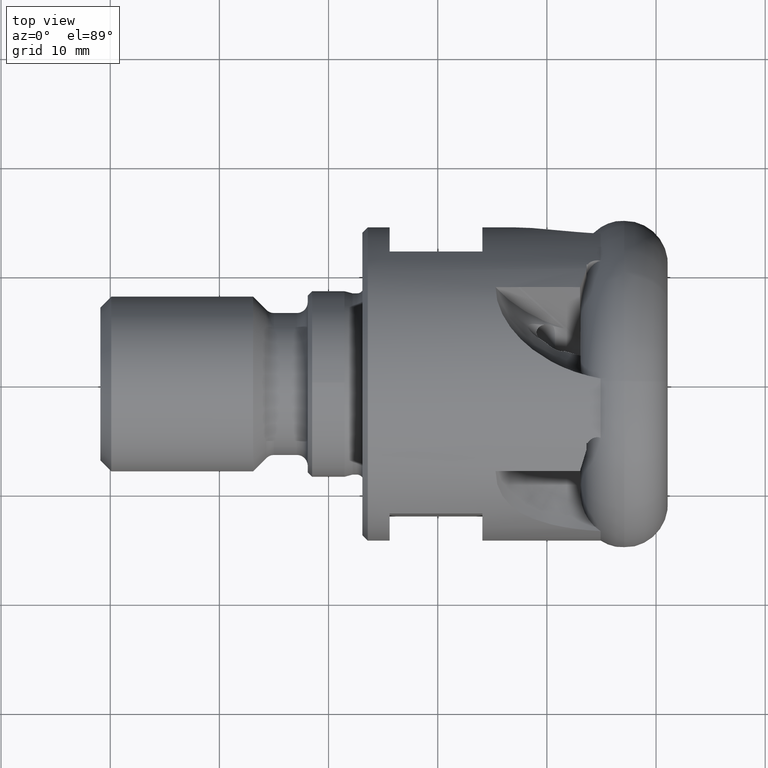
[diagram: clean part render]
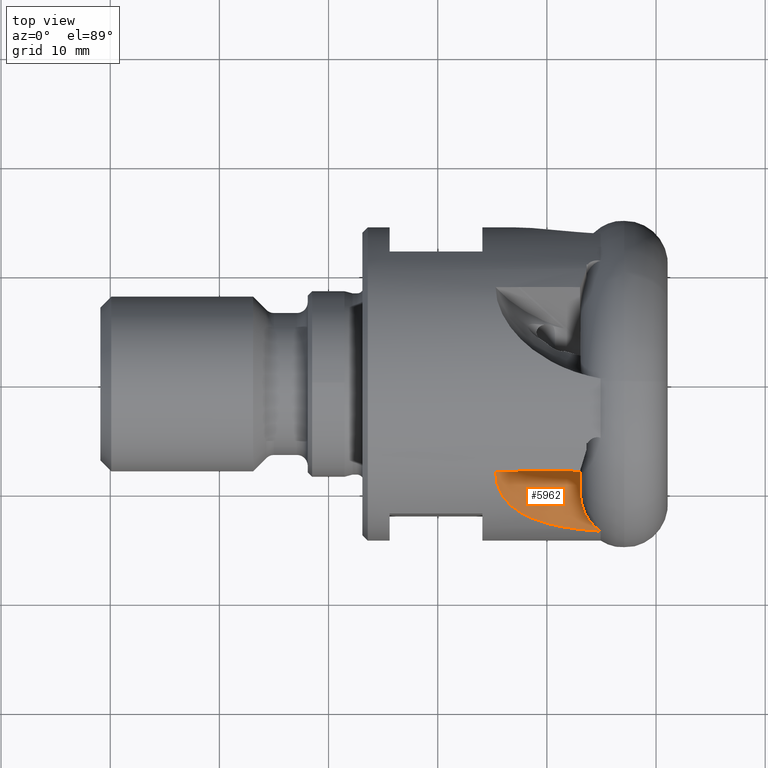
[diagram: same view with one face highlighted and labeled with its STEP entity id]
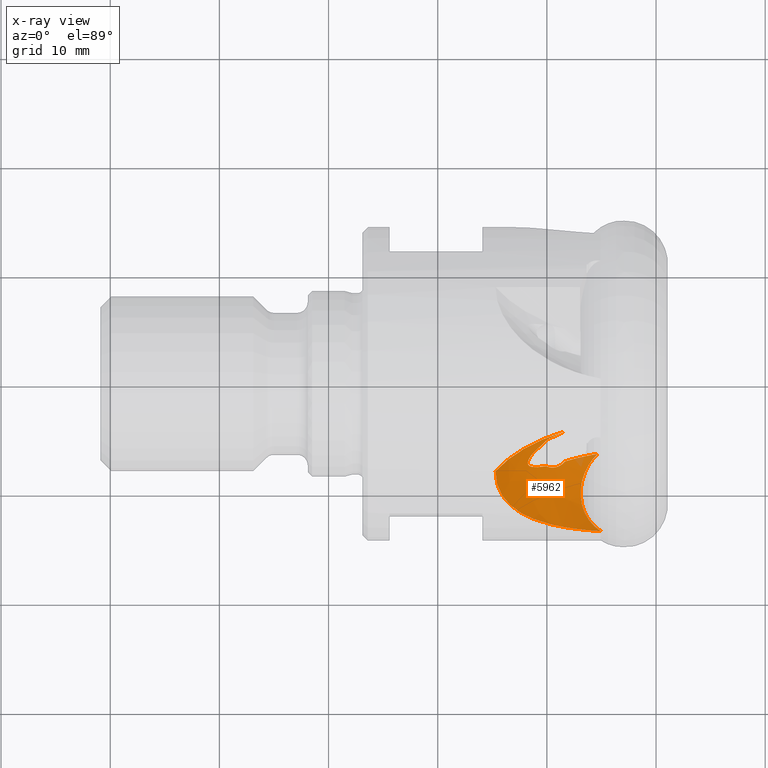
[diagram: x-ray of the same camera — body ghosted, the highlighted face saturated]
A machine part, top view. The second image highlights one B-rep face of the part: STEP entity #5962.
The next image is the same camera in x-ray: the body ghosted, the highlighted face saturated — about 1% of this face is hidden behind the body in this view.
In plain terms, the highlighted face is a freeform B-spline surface patch.
Its self-contained STEP definition (entity closure, byte-faithful):
#12 = CARTESIAN_POINT ( 'NONE',  ( -10.04705301473808500, -7.645800610265858700, 6.247864886973579800 ) ) ;
#26 = CARTESIAN_POINT ( 'NONE',  ( -3.705439773503559100, -13.38849098158731400, 4.369866364340852600 ) ) ;
#42 = CARTESIAN_POINT ( 'NONE',  ( -11.74272891371804700, -7.405442161452576500, 7.775184379327194900 ) ) ;
#67 = CARTESIAN_POINT ( 'NONE',  ( -10.70330900907564200, -7.736125916520622400, 6.717121923245575700 ) ) ;
#117 = CARTESIAN_POINT ( 'NONE',  ( -14.69983681011818200, -8.190169841626934400, 11.78319218061492000 ) ) ;
#125 = CARTESIAN_POINT ( 'NONE',  ( -11.70564417135195100, -7.529892942403793500, 7.687998823451656500 ) ) ;
#170 = CARTESIAN_POINT ( 'NONE',  ( -14.70646447844221400, -8.687454552218447600, 11.43754338044604800 ) ) ;
#224 = CARTESIAN_POINT ( 'NONE',  ( -14.40811349964155100, -9.797837785172966100, 10.48851702576042700 ) ) ;
#353 = CARTESIAN_POINT ( 'NONE',  ( -6.777666542526672400, -8.952613240475436400, 4.324612844097894800 ) ) ;
#427 = CARTESIAN_POINT ( 'NONE',  ( -8.871391609248368200, -7.631450204184483600, 5.496654848925729200 ) ) ;
#469 = EDGE_CURVE ( 'NONE', #4879, #7074, #6116, .T. ) ;
#508 = VERTEX_POINT ( 'NONE', #1663 ) ;
#635 = CARTESIAN_POINT ( 'NONE',  ( -10.24126164692486700, -16.20420476099483800, 8.245363903538978100 ) ) ;
#685 = CARTESIAN_POINT ( 'NONE',  ( -14.74160504866387600, -8.237418642983652000, 11.84822457656624400 ) ) ;
#697 = EDGE_CURVE ( 'NONE', #2544, #6575, #6360, .T. ) ;
#703 = CARTESIAN_POINT ( 'NONE',  ( -11.61799081035089300, -6.969453042920705800, 7.842360009631447900 ) ) ;
#753 = CARTESIAN_POINT ( 'NONE',  ( -9.563789143980603300, -12.99228823790977400, 6.100550756424100400 ) ) ;
#762 = CARTESIAN_POINT ( 'NONE',  ( -11.32708563753295300, -7.737966067767482400, 7.250201359892233000 ) ) ;
#782 = CARTESIAN_POINT ( 'NONE',  ( -5.655425139769594300, -13.53205544651263600, 4.776820319269227800 ) ) ;
#821 = EDGE_CURVE ( 'NONE', #1519, #6575, #7856, .T. ) ;
#823 = CARTESIAN_POINT ( 'NONE',  ( -6.857276701422535800, -10.80619919189971000, 4.397927385599067500 ) ) ;
#833 = EDGE_CURVE ( 'NONE', #7074, #508, #1454, .T. ) ;
#912 = CARTESIAN_POINT ( 'NONE',  ( -6.259754691299212600, -12.37785569290286100, 4.530162707943186500 ) ) ;
#1246 = CARTESIAN_POINT ( 'NONE',  ( -8.807074941663511700, -14.74853799945180600, 6.241810490720300000 ) ) ;
#1264 = EDGE_LOOP ( 'NONE', ( #3107, #4066, #6199, #4262, #4499, #6285, #5709, #2574 ) ) ;
#1297 = CARTESIAN_POINT ( 'NONE',  ( -12.80577058329979100, -6.031192742988312500, 8.811615135337381900 ) ) ;
#1316 = CARTESIAN_POINT ( 'NONE',  ( -10.25096557331351700, -5.515908716616217500, 7.378431682773954700 ) ) ;
#1396 = CARTESIAN_POINT ( 'NONE',  ( -10.86450497190189100, -7.747733009514333500, 6.845254331236978900 ) ) ;
#1414 = CARTESIAN_POINT ( 'NONE',  ( -11.06656975545760700, -12.55039754229236800, 6.959865723888330400 ) ) ;
#1438 = CARTESIAN_POINT ( 'NONE',  ( -11.99865759766023600, -12.16891827619830800, 7.614901060894053900 ) ) ;
#1454 = CIRCLE ( 'NONE', #6256, 14.43012998953867800 ) ;
#1470 = CARTESIAN_POINT ( 'NONE',  ( -13.96596693476521300, -10.58373955803185900, 9.694132764754781900 ) ) ;
#1519 = VERTEX_POINT ( 'NONE', #7130 ) ;
#1543 = CARTESIAN_POINT ( 'NONE',  ( -6.347523605528028400, -12.23412382193859900, 4.515213385737951900 ) ) ;
#1574 = CARTESIAN_POINT ( 'NONE',  ( -5.600306236559022800, -6.721614311995977300, 4.350837014569693300 ) ) ;
#1639 = CARTESIAN_POINT ( 'NONE',  ( -6.881626997928608900, -9.451815195784668300, 4.334825343394817800 ) ) ;
#1663 = CARTESIAN_POINT ( 'NONE',  ( -8.338957689632810100, -7.191332520442813300, 5.326495352307529400 ) ) ;
#1691 = CARTESIAN_POINT ( 'NONE',  ( -6.630694444002932300, -8.462551325484168900, 4.319699687729929000 ) ) ;
#1892 = CARTESIAN_POINT ( 'NONE',  ( -5.452550337404973700, -6.621363783211338100, 3.713674648972836500 ) ) ;
#1940 = CARTESIAN_POINT ( 'NONE',  ( -10.25096557331351700, -5.515908716616217500, 7.378431682773954700 ) ) ;
#1952 = CARTESIAN_POINT ( 'NONE',  ( -5.452550337404980900, -3.810877062970462700, 5.755612775622114300 ) ) ;
#1955 = EDGE_CURVE ( 'NONE', #2222, #2544, #2772, .T. ) ;
#1969 = CARTESIAN_POINT ( 'NONE',  ( -10.86289224561594200, -6.021181672586974900, 7.605386444069002200 ) ) ;
#2025 = CARTESIAN_POINT ( 'NONE',  ( -10.37851918409953500, -7.700220513805855500, 6.474079855971671900 ) ) ;
#2097 = CARTESIAN_POINT ( 'NONE',  ( -6.231843352966958300, -13.48588285534628800, 4.907418939207422800 ) ) ;
#2137 = VERTEX_POINT ( 'NONE', #12 ) ;
#2190 = EDGE_CURVE ( 'NONE', #1519, #2137, #7879, .T. ) ;
#2197 = CARTESIAN_POINT ( 'NONE',  ( -5.817800999729589900, -6.979139228842131900, 4.341221354927473200 ) ) ;
#2222 = VERTEX_POINT ( 'NONE', #2721 ) ;
#2279 = CARTESIAN_POINT ( 'NONE',  ( -6.204022243004700100, -7.538785746591223400, 4.326496247654678700 ) ) ;
#2408 = EDGE_CURVE ( 'NONE', #508, #2137, #6641, .T. ) ;
#2453 = CARTESIAN_POINT ( 'NONE',  ( -8.786530610216619400, -4.631438529866983300, 6.841510889309748000 ) ) ;
#2544 = VERTEX_POINT ( 'NONE', #6915 ) ;
#2574 = ORIENTED_EDGE ( 'NONE', *, *, #1955, .F. ) ;
#2594 = CARTESIAN_POINT ( 'NONE',  ( -14.74160504866387500, -11.04790536322452800, 9.806286449916964200 ) ) ;
#2650 = CARTESIAN_POINT ( 'NONE',  ( -6.498848488799568600, -13.75412518417112500, 4.873118670283106200 ) ) ;
#2721 = CARTESIAN_POINT ( 'NONE',  ( -14.69983681011818200, -8.190169841626934400, 11.78319218061492000 ) ) ;
#2732 = CARTESIAN_POINT ( 'NONE',  ( -6.826701155044739600, -10.97226393130717000, 4.408766409861233800 ) ) ;
#2772 = CIRCLE ( 'NONE', #6918, 14.88424295726789400 ) ;
#2955 = CARTESIAN_POINT ( 'NONE',  ( -10.04705301473808500, -7.645800610265858700, 6.247864886973579800 ) ) ;
#3107 = ORIENTED_EDGE ( 'NONE', *, *, #6379, .T. ) ;
#3143 = CARTESIAN_POINT ( 'NONE',  ( -1.513101572890599200, -12.24762134610108800, 17.36779507456177600 ) ) ;
#3360 = CARTESIAN_POINT ( 'NONE',  ( -11.26845864376106100, -6.468096936577457400, 7.747205771223249800 ) ) ;
#3367 = CARTESIAN_POINT ( 'NONE',  ( -5.074100262649284200, -13.56778360360409700, 4.673087639427680400 ) ) ;
#3734 = CARTESIAN_POINT ( 'NONE',  ( -9.136360033822063200, -4.799330036727606200, 6.969924386750721900 ) ) ;
#3865 = CARTESIAN_POINT ( 'NONE',  ( -5.074100262649284200, -13.56778360360409700, 4.673087639427680400 ) ) ;
#3894 = CARTESIAN_POINT ( 'NONE',  ( -11.39741391621260600, -6.625560791402398800, 7.790742253264255600 ) ) ;
#3895 = DIRECTION ( 'NONE',  ( 0.0000000000000000000, 0.5877852522924687000, -0.8090169943749506700 ) ) ;
#3923 = CARTESIAN_POINT ( 'NONE',  ( -11.73808705071167900, -7.260533502170279300, 7.831456713815521600 ) ) ;
#3942 = CARTESIAN_POINT ( 'NONE',  ( -13.54124938334367200, -11.10621802274286000, 9.102276286900112400 ) ) ;
#3949 = CARTESIAN_POINT ( 'NONE',  ( -11.17622091078991900, -7.747223059522772500, 7.112210986025900200 ) ) ;
#3970 = CARTESIAN_POINT ( 'NONE',  ( -9.034685846624244100, -13.10344535809567300, 5.854779975961101900 ) ) ;
#4005 = CARTESIAN_POINT ( 'NONE',  ( -1.513101572890598800, -14.66421562823076600, 15.61203655566000000 ) ) ;
#4066 = ORIENTED_EDGE ( 'NONE', *, *, #469, .T. ) ;
#4170 = CARTESIAN_POINT ( 'NONE',  ( -9.024449388581549800, -7.695766253970365500, 5.569246373932385200 ) ) ;
#4262 = ORIENTED_EDGE ( 'NONE', *, *, #2408, .T. ) ;
#4478 = CARTESIAN_POINT ( 'NONE',  ( -12.80577058329978400, -8.841679463229187500, 6.769677008688100600 ) ) ;
#4499 = ORIENTED_EDGE ( 'NONE', *, *, #2190, .F. ) ;
#4507 = CARTESIAN_POINT ( 'NONE',  ( -4.849443281778576400, -10.10833663914939800, 3.103984562183325700 ) ) ;
#4528 = DIRECTION ( 'NONE',  ( -1.896080249266868400E-016, 0.8090169943749507800, 0.5877852522924687000 ) ) ;
#4575 = CARTESIAN_POINT ( 'NONE',  ( -10.57769976716079800, -12.71394844562281000, 6.656404756787199300 ) ) ;
#4581 = CARTESIAN_POINT ( 'NONE',  ( -11.53674424938752100, -7.672104662132493800, 7.469953708717294900 ) ) ;
#4604 = CARTESIAN_POINT ( 'NONE',  ( -7.941171551886162300, -13.28973277661757600, 5.418646652588684300 ) ) ;
#4672 = FACE_OUTER_BOUND ( 'NONE', #1264, .T. ) ;
#4736 = CARTESIAN_POINT ( 'NONE',  ( -5.358921438107545400, -13.38245231961125400, 4.649502395677527200 ) ) ;
#4767 = CARTESIAN_POINT ( 'NONE',  ( -6.915883220873791300, -9.788242119006247000, 4.345868414890061300 ) ) ;
#4838 = CARTESIAN_POINT ( 'NONE',  ( -8.338957689632810100, -7.191332520442813300, 5.326495352307529400 ) ) ;
#4879 = VERTEX_POINT ( 'NONE', #3865 ) ;
#4970 = DIRECTION ( 'NONE',  ( 0.0000000000000000000, 0.5877852522924684700, -0.8090169943749506700 ) ) ;
#5053 = CARTESIAN_POINT ( 'NONE',  ( -10.01687696351578800, -5.282004028911455200, 7.332770541425384500 ) ) ;
#5119 = CARTESIAN_POINT ( 'NONE',  ( -8.480493996297960600, -10.66476567912839700, 3.869843432835558400 ) ) ;
#5145 = CARTESIAN_POINT ( 'NONE',  ( -9.525197424808183700, -7.278377927849359000, 4.617977039146450300 ) ) ;
#5157 = CARTESIAN_POINT ( 'NONE',  ( -10.04705301473808500, -7.645800610265858700, 6.247864886973579800 ) ) ;
#5167 = CARTESIAN_POINT ( 'NONE',  ( -9.525197424808192500, -4.467891207608484900, 6.659915165795729800 ) ) ;
#5238 = CARTESIAN_POINT ( 'NONE',  ( -11.60333608878291800, -7.641577495012359800, 7.544856992556482600 ) ) ;
#5256 = CARTESIAN_POINT ( 'NONE',  ( -5.074100262649284200, -13.56778360360409700, 4.673087639427680400 ) ) ;
#5264 = CARTESIAN_POINT ( 'NONE',  ( -11.70384259356636600, -7.158123472010471400, 7.842089050859781800 ) ) ;
#5285 = CARTESIAN_POINT ( 'NONE',  ( -13.19432903900449400, -11.41515648082362200, 8.707711392624792900 ) ) ;
#5328 = CARTESIAN_POINT ( 'NONE',  ( -5.615670039255906700, -13.16451466149228500, 4.621024693870251300 ) ) ;
#5338 = CARTESIAN_POINT ( 'NONE',  ( -14.09254990793364100, -10.39928223947062800, 9.892179901725974400 ) ) ;
#5429 = CARTESIAN_POINT ( 'NONE',  ( -8.451664277619521200, -7.330426550165637600, 5.344701994802979300 ) ) ;
#5444 = CARTESIAN_POINT ( 'NONE',  ( -6.910691292415070700, -10.29873576234051300, 4.369235533407731100 ) ) ;
#5523 = CARTESIAN_POINT ( 'NONE',  ( -8.583687381102445000, -7.447959986326615900, 5.383869473639212100 ) ) ;
#5698 = CARTESIAN_POINT ( 'NONE',  ( -9.612190061732539100, -5.038948039646642800, 7.169985343912071800 ) ) ;
#5709 = ORIENTED_EDGE ( 'NONE', *, *, #697, .F. ) ;
#5742 = CARTESIAN_POINT ( 'NONE',  ( -11.42541057369168400, -12.03168536664629000, 5.751246977471316400 ) ) ;
#5757 = CARTESIAN_POINT ( 'NONE',  ( -9.472346055733398300, -4.994568907947601700, 7.093058737687396600 ) ) ;
#5885 = CARTESIAN_POINT ( 'NONE',  ( -12.42418491847552700, -11.94449020531967100, 7.966127598398080600 ) ) ;
#5919 = CARTESIAN_POINT ( 'NONE',  ( -10.21386972521571600, -7.675586991061847700, 6.358382504020047700 ) ) ;
#5938 = CARTESIAN_POINT ( 'NONE',  ( -7.373570425927779200, -13.36499341641783500, 5.227690504622705300 ) ) ;
#5962 = ADVANCED_FACE ( 'NONE', ( #4672 ), #7122, .F. ) ;
#5981 = B_SPLINE_CURVE_WITH_KNOTS ( 'NONE', 3,
 ( #117, #170, #7812, #224, #6571, #5338, #1470, #3942, #5285, #5885, #1438, #5997, #1414, #4575, #7189, #753, #3970, #4604, #5938, #2097, #782, #5256 ),
 .UNSPECIFIED., .F., .F.,
 ( 4, 2, 2, 2, 2, 2, 2, 2, 2, 2, 4 ),
 ( 0.0000000000000000000, 0.001786637932897005300, 0.002679956899345505900, 0.003573275865794007100, 0.005359913798691011800, 0.007146551731588017700, 0.008039870698036520300, 0.008933189664485023700, 0.01071982759738202200, 0.01250646553027902000, 0.01429310346317602000 ),
 .UNSPECIFIED. ) ;
#5997 = CARTESIAN_POINT ( 'NONE',  ( -11.30667669216971300, -12.46066502745646400, 7.119762960838171400 ) ) ;
#6098 = CARTESIAN_POINT ( 'NONE',  ( -6.571201051718272600, -8.304047103858971800, 4.319441129961299800 ) ) ;
#6116 = B_SPLINE_CURVE_WITH_KNOTS ( 'NONE', 3,
 ( #3367, #4736, #5328, #6648, #7294, #912, #1543, #7209, #7858, #2732, #823, #7238, #5444, #4767, #1639, #353, #8077, #1691, #6098, #7348, #2279, #2197, #1574, #6781 ),
 .UNSPECIFIED., .F., .F.,
 ( 4, 2, 2, 2, 2, 2, 2, 2, 2, 2, 2, 4 ),
 ( 0.0001760411316068423300, 0.001189957854062642400, 0.001696916215290541600, 0.002203874576518440400, 0.003217791298974239700, 0.003724749660202136700, 0.004231708021430033800, 0.005245624743885822700, 0.005752583105113718400, 0.006259541466341612400, 0.007273458188797396100, 0.008287374911253177200 ),
 .UNSPECIFIED. ) ;
#6195 = CARTESIAN_POINT ( 'NONE',  ( -9.472346055733398300, -4.994568907947601700, 7.093058737687396600 ) ) ;
#6199 = ORIENTED_EDGE ( 'NONE', *, *, #833, .T. ) ;
#6256 = AXIS2_PLACEMENT_3D ( 'NONE', #4005, #4528, #3895 ) ;
#6285 = ORIENTED_EDGE ( 'NONE', *, *, #821, .T. ) ;
#6297 = CARTESIAN_POINT ( 'NONE',  ( -8.420963146052372400, -4.498165152365104700, 6.701583676020083800 ) ) ;
#6360 = B_SPLINE_CURVE_WITH_KNOTS ( 'NONE', 3,
 ( #6297, #2453, #3734, #6835 ),
 .UNSPECIFIED., .F., .F.,
 ( 4, 4 ),
 ( 3.391595129051605600E-017, 0.001222898048774406400 ),
 .UNSPECIFIED. ) ;
#6379 = EDGE_CURVE ( 'NONE', #2222, #4879, #5981, .T. ) ;
#6571 = CARTESIAN_POINT ( 'NONE',  ( -14.31350319673543000, -10.00703085792626400, 10.28881080168122300 ) ) ;
#6575 = VERTEX_POINT ( 'NONE', #6195 ) ;
#6641 = B_SPLINE_CURVE_WITH_KNOTS ( 'NONE', 3,
 ( #4838, #5429, #5523, #427, #4170, #8070, #8126, #2955 ),
 .UNSPECIFIED., .F., .F.,
 ( 4, 2, 2, 4 ),
 ( 0.001444025349732741700, 0.001977964350554748900, 0.002511903351376756000, 0.003579781353020763900 ),
 .UNSPECIFIED. ) ;
#6648 = CARTESIAN_POINT ( 'NONE',  ( -5.958792793094050700, -12.78821190775712900, 4.575905507561580900 ) ) ;
#6781 = CARTESIAN_POINT ( 'NONE',  ( -5.355807354959809500, -6.488668658551404200, 4.359361516630304600 ) ) ;
#6835 = CARTESIAN_POINT ( 'NONE',  ( -9.472346055733398300, -4.994568907947601700, 7.093058737687396600 ) ) ;
#6893 = CARTESIAN_POINT ( 'NONE',  ( -5.355807354959809500, -6.488668658551404200, 4.359361516630304600 ) ) ;
#6915 = CARTESIAN_POINT ( 'NONE',  ( -8.420963146052372400, -4.498165152365104700, 6.701583676020083800 ) ) ;
#6918 = AXIS2_PLACEMENT_3D ( 'NONE', #3143, #8261, #4970 ) ;
#7071 = CARTESIAN_POINT ( 'NONE',  ( -13.18807494335128000, -13.97881632358627100, 8.431242823393269200 ) ) ;
#7074 = VERTEX_POINT ( 'NONE', #6893 ) ;
#7087 = CARTESIAN_POINT ( 'NONE',  ( -10.56466809203501000, -5.755873192265038800, 7.493713544267479600 ) ) ;
#7089 = CARTESIAN_POINT ( 'NONE',  ( -10.14215198398338900, -5.391332518803957400, 7.365293606670836500 ) ) ;
#7122 =( BOUNDED_SURFACE ( )  B_SPLINE_SURFACE ( 3, 3, ( 
 ( #635, #1246, #2650, #26 ),
 ( #7071, #5742, #5119, #4507 ),
 ( #2594, #4478, #5145, #1892 ),
 ( #685, #1297, #5167, #1952 ) ),
 .UNSPECIFIED., .F., .F., .F. ) 
 B_SPLINE_SURFACE_WITH_KNOTS ( ( 4, 4 ),
 ( 4, 4 ),
 ( 0.3915967886660384200, 1.000000000000000000 ),
 ( 0.0000000000000000000, 1.000000000000000000 ),
 .UNSPECIFIED. ) 
 GEOMETRIC_REPRESENTATION_ITEM ( )  RATIONAL_B_SPLINE_SURFACE ( (
 ( 0.8429497397102444500, 0.7956136395192420200, 0.7956136395192420200, 0.8429497397102444500),
 ( 0.8139662664898462700, 0.7682577420932388300, 0.7682577420932388300, 0.8139662664898462700),
 ( 0.8663163532530981900, 0.8176680937390865500, 0.8176680937390865500, 0.8663163532530981900),
 ( 1.000000000000000000, 0.9438446944567848700, 0.9438446944567848700, 1.000000000000000000) ) ) 
 REPRESENTATION_ITEM ( '' )  SURFACE ( )  );
#7130 = CARTESIAN_POINT ( 'NONE',  ( -10.25096557331351700, -5.515908716616217500, 7.378431682773954700 ) ) ;
#7189 = CARTESIAN_POINT ( 'NONE',  ( -10.32792461828439200, -12.78823100656960900, 6.512072713028499200 ) ) ;
#7209 = CARTESIAN_POINT ( 'NONE',  ( -6.583819112228732200, -11.78691097101575200, 4.471601311479784800 ) ) ;
#7238 = CARTESIAN_POINT ( 'NONE',  ( -6.899287340736600900, -10.46994996028296600, 4.378183513550021100 ) ) ;
#7294 = CARTESIAN_POINT ( 'NONE',  ( -6.065820490256680100, -12.65445621773149300, 4.560452851147204000 ) ) ;
#7348 = CARTESIAN_POINT ( 'NONE',  ( -6.369966266518369800, -7.838511768383025200, 4.321403085007001500 ) ) ;
#7766 = CARTESIAN_POINT ( 'NONE',  ( -11.73580631902910400, -7.451412206872833900, 7.749398632334667500 ) ) ;
#7812 = CARTESIAN_POINT ( 'NONE',  ( -14.63226985678680400, -9.150151145821292100, 11.06949378542409900 ) ) ;
#7849 = CARTESIAN_POINT ( 'NONE',  ( -11.68310877716598000, -7.562122681527179100, 7.653184276069535700 ) ) ;
#7856 = B_SPLINE_CURVE_WITH_KNOTS ( 'NONE', 3,
 ( #1316, #7089, #5053, #8283, #5698, #5757 ),
 .UNSPECIFIED., .F., .F.,
 ( 4, 2, 4 ),
 ( 0.006369113915017544400, 0.006864753864139890200, 0.007360393813262236000 ),
 .UNSPECIFIED. ) ;
#7858 = CARTESIAN_POINT ( 'NONE',  ( -6.705651591271001500, -11.46416153500026500, 4.444027310528339200 ) ) ;
#7872 = CARTESIAN_POINT ( 'NONE',  ( -11.56604005668098600, -6.881342861128624500, 7.832373864047571700 ) ) ;
#7879 = B_SPLINE_CURVE_WITH_KNOTS ( 'NONE', 3,
 ( #1940, #7087, #1969, #3360, #3894, #7872, #703, #5264, #3923, #42, #7766, #125, #7849, #5238, #4581, #762, #3949, #1396, #67, #2025, #5919, #5157 ),
 .UNSPECIFIED., .F., .F.,
 ( 4, 2, 2, 2, 2, 2, 2, 2, 2, 2, 4 ),
 ( 0.002200373060314687500, 0.003424868702524710500, 0.004037116523629721500, 0.004343240434182226600, 0.004649364344734731700, 0.004802426300010983300, 0.004955488255287235900, 0.005261612165839740100, 0.005873859986944751100, 0.006486107808049761300, 0.007098355629154771500 ),
 .UNSPECIFIED. ) ;
#8070 = CARTESIAN_POINT ( 'NONE',  ( -9.485639182944389300, -7.807059246513388100, 5.820065309737273700 ) ) ;
#8077 = CARTESIAN_POINT ( 'NONE',  ( -6.733889922181342400, -8.786484532485113500, 4.322274792561348300 ) ) ;
#8126 = CARTESIAN_POINT ( 'NONE',  ( -9.793142464758828300, -7.771747758521064100, 6.030021224877944300 ) ) ;
#8261 = DIRECTION ( 'NONE',  ( 1.896080249266868400E-016, -0.8090169943749507800, -0.5877852522924687000 ) ) ;
#8283 = CARTESIAN_POINT ( 'NONE',  ( -9.752954961657598800, -5.106545458972297200, 7.235491053078259700 ) ) ;